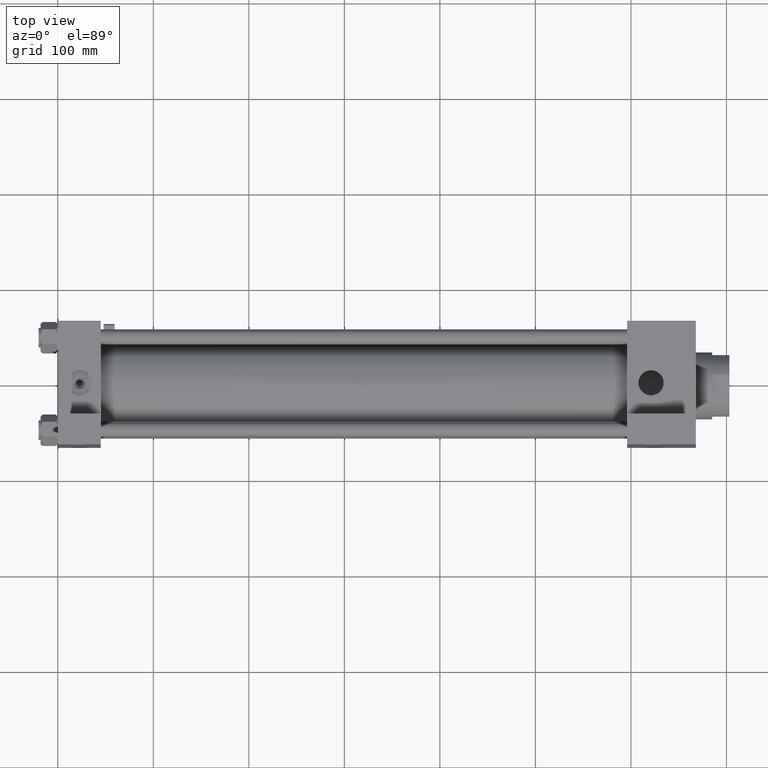
[diagram: clean part render]
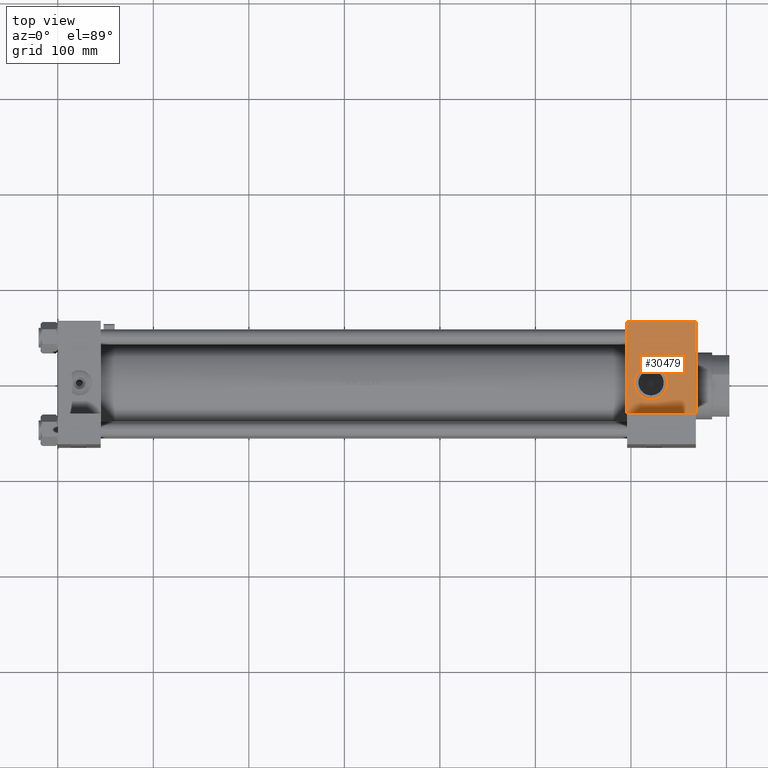
[diagram: same view with one face highlighted and labeled with its STEP entity id]
A machine part, top view. The second image highlights one B-rep face of the part: STEP entity #30479.
In plain terms, the highlighted planar face has unit normal (0, 0, -1).
Its self-contained STEP definition (entity closure, byte-faithful):
#391 = CARTESIAN_POINT ( 'NONE',  ( 668.0000000000000000, -64.99999999999998579, -33.00000000000000000 ) ) ;
#1822 = ORIENTED_EDGE ( 'NONE', *, *, #26626, .F. ) ;
#1991 = LINE ( 'NONE', #30269, #17804 ) ;
#2578 = FACE_BOUND ( 'NONE', #41641, .T. ) ;
#3438 = CARTESIAN_POINT ( 'NONE',  ( 596.0000000000001137, -64.99999999999998579, -33.00000000000000000 ) ) ;
#4255 = DIRECTION ( 'NONE',  ( 0.000000000000000000, -1.000000000000000000, -8.673617379884036705E-17 ) ) ;
#5258 = CARTESIAN_POINT ( 'NONE',  ( 621.0000000000001137, -64.99999999999998579, 0.000000000000000000 ) ) ;
#7135 = EDGE_CURVE ( 'NONE', #35412, #45154, #22256, .T. ) ;
#8336 = ORIENTED_EDGE ( 'NONE', *, *, #7135, .T. ) ;
#8719 = DIRECTION ( 'NONE',  ( 0.000000000000000000, 0.000000000000000000, -1.000000000000000000 ) ) ;
#10372 = VERTEX_POINT ( 'NONE', #41321 ) ;
#10618 = VECTOR ( 'NONE', #50589, 1000.000000000000000 ) ;
#12376 = CIRCLE ( 'NONE', #49540, 17.49999999999993605 ) ;
#12764 = EDGE_CURVE ( 'NONE', #14861, #10372, #12376, .T. ) ;
#12944 = ORIENTED_EDGE ( 'NONE', *, *, #40565, .F. ) ;
#13261 = CARTESIAN_POINT ( 'NONE',  ( 621.0000000000001137, -64.99999999999998579, 17.49999999999993605 ) ) ;
#14861 = VERTEX_POINT ( 'NONE', #13261 ) ;
#15359 = VERTEX_POINT ( 'NONE', #35136 ) ;
#15854 = VECTOR ( 'NONE', #26952, 1000.000000000000000 ) ;
#16144 = VECTOR ( 'NONE', #33121, 1000.000000000000000 ) ;
#16544 = ORIENTED_EDGE ( 'NONE', *, *, #49236, .T. ) ;
#16904 = CARTESIAN_POINT ( 'NONE',  ( 596.0000000000001137, -64.99999999999998579, 64.50000000000017053 ) ) ;
#17804 = VECTOR ( 'NONE', #29996, 1000.000000000000000 ) ;
#18524 = VERTEX_POINT ( 'NONE', #391 ) ;
#20949 = CARTESIAN_POINT ( 'NONE',  ( 668.0000000000000000, -64.99999999999998579, 65.00000000000000000 ) ) ;
#21375 = DIRECTION ( 'NONE',  ( 0.000000000000000000, -1.000000000000000000, -8.673617379884036705E-17 ) ) ;
#22210 = EDGE_CURVE ( 'NONE', #45154, #18524, #1991, .T. ) ;
#22256 = LINE ( 'NONE', #38393, #10618 ) ;
#24001 = ORIENTED_EDGE ( 'NONE', *, *, #12764, .F. ) ;
#24016 = CARTESIAN_POINT ( 'NONE',  ( 668.0000000000000000, -64.99999999999998579, 64.50000000000017053 ) ) ;
#24404 = LINE ( 'NONE', #20949, #16144 ) ;
#26626 = EDGE_CURVE ( 'NONE', #15359, #18524, #24404, .T. ) ;
#26952 = DIRECTION ( 'NONE',  ( -1.000000000000000000, 0.000000000000000000, 0.000000000000000000 ) ) ;
#27399 = CARTESIAN_POINT ( 'NONE',  ( 668.0000000000000000, -64.99999999999998579, 65.00000000000000000 ) ) ;
#28875 = AXIS2_PLACEMENT_3D ( 'NONE', #27399, #31367, #43539 ) ;
#29996 = DIRECTION ( 'NONE',  ( 1.000000000000000000, 0.000000000000000000, 0.000000000000000000 ) ) ;
#30269 = CARTESIAN_POINT ( 'NONE',  ( 596.0000000000001137, -64.99999999999998579, -33.00000000000000000 ) ) ;
#30479 = ADVANCED_FACE ( 'NONE', ( #2578, #51500 ), #35335, .F. ) ;
#31367 = DIRECTION ( 'NONE',  ( -0.000000000000000000, 1.000000000000000000, 0.000000000000000000 ) ) ;
#32809 = CARTESIAN_POINT ( 'NONE',  ( 621.0000000000001137, -64.99999999999998579, 0.000000000000000000 ) ) ;
#33121 = DIRECTION ( 'NONE',  ( 0.000000000000000000, 0.000000000000000000, -1.000000000000000000 ) ) ;
#35136 = CARTESIAN_POINT ( 'NONE',  ( 668.0000000000000000, -64.99999999999998579, 64.50000000000017053 ) ) ;
#35335 = PLANE ( 'NONE',  #28875 ) ;
#35412 = VERTEX_POINT ( 'NONE', #16904 ) ;
#38393 = CARTESIAN_POINT ( 'NONE',  ( 596.0000000000001137, -64.99999999999998579, 65.00000000000000000 ) ) ;
#38553 = EDGE_LOOP ( 'NONE', ( #1822, #16544, #8336, #38797 ) ) ;
#38797 = ORIENTED_EDGE ( 'NONE', *, *, #22210, .T. ) ;
#40565 = EDGE_CURVE ( 'NONE', #10372, #14861, #48636, .T. ) ;
#41321 = CARTESIAN_POINT ( 'NONE',  ( 621.0000000000001137, -64.99999999999998579, -17.49999999999993605 ) ) ;
#41641 = EDGE_LOOP ( 'NONE', ( #12944, #24001 ) ) ;
#43539 = DIRECTION ( 'NONE',  ( 0.000000000000000000, -0.000000000000000000, 1.000000000000000000 ) ) ;
#45154 = VERTEX_POINT ( 'NONE', #3438 ) ;
#48636 = CIRCLE ( 'NONE', #49458, 17.49999999999993605 ) ;
#49236 = EDGE_CURVE ( 'NONE', #15359, #35412, #51315, .T. ) ;
#49458 = AXIS2_PLACEMENT_3D ( 'NONE', #5258, #21375, #49954 ) ;
#49540 = AXIS2_PLACEMENT_3D ( 'NONE', #32809, #4255, #8719 ) ;
#49954 = DIRECTION ( 'NONE',  ( 0.000000000000000000, 0.000000000000000000, -1.000000000000000000 ) ) ;
#50589 = DIRECTION ( 'NONE',  ( 0.000000000000000000, 0.000000000000000000, -1.000000000000000000 ) ) ;
#51315 = LINE ( 'NONE', #24016, #15854 ) ;
#51500 = FACE_OUTER_BOUND ( 'NONE', #38553, .T. ) ;